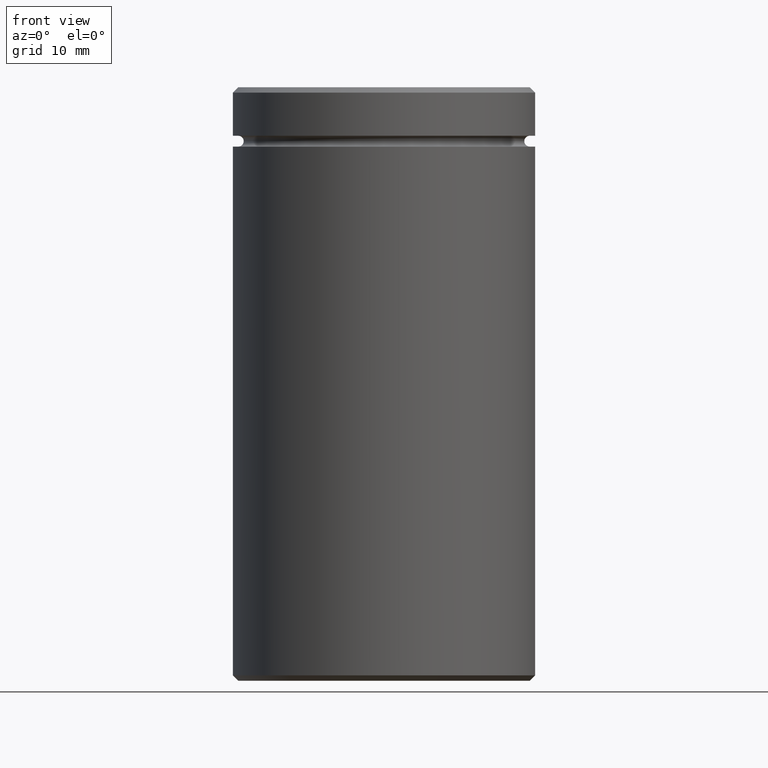
[diagram: clean part render]
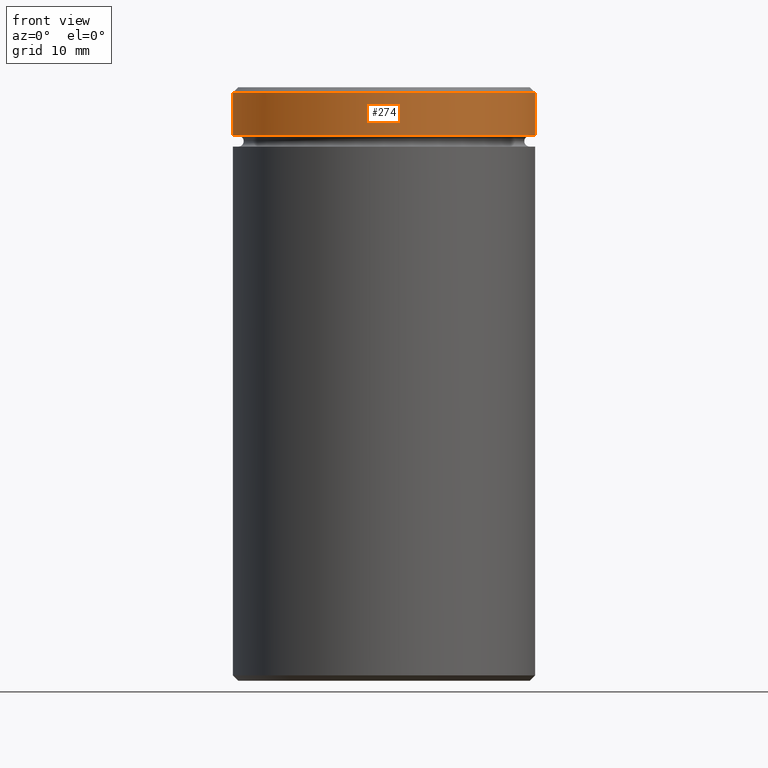
[diagram: same view with one face highlighted and labeled with its STEP entity id]
A machine part, front view. The second image highlights one B-rep face of the part: STEP entity #274.
In plain terms, the highlighted cylindrical surface (partial cylindrical patch) has radius 14 mm, axis along (-0, -0, 1).
Its self-contained STEP definition (entity closure, byte-faithful):
#11 = CARTESIAN_POINT ( 'NONE',  ( 0.000000000000000000, 0.000000000000000000, -4.500000000000000888 ) ) ;
#18 = CARTESIAN_POINT ( 'NONE',  ( -14.00000000000000000, 1.714505518806294638E-15, -4.500000000000000888 ) ) ;
#32 = CARTESIAN_POINT ( 'NONE',  ( 14.00000000000000000, 0.000000000000000000, 0.000000000000000000 ) ) ;
#35 = AXIS2_PLACEMENT_3D ( 'NONE', #166, #337, #517 ) ;
#48 = ORIENTED_EDGE ( 'NONE', *, *, #497, .T. ) ;
#53 = ORIENTED_EDGE ( 'NONE', *, *, #297, .T. ) ;
#70 = CIRCLE ( 'NONE', #257, 14.00000000000000000 ) ;
#116 = CIRCLE ( 'NONE', #35, 14.00000000000000000 ) ;
#123 = DIRECTION ( 'NONE',  ( -0.000000000000000000, -0.000000000000000000, 1.000000000000000000 ) ) ;
#148 = DIRECTION ( 'NONE',  ( -0.000000000000000000, -0.000000000000000000, 1.000000000000000000 ) ) ;
#159 = FACE_OUTER_BOUND ( 'NONE', #472, .T. ) ;
#166 = CARTESIAN_POINT ( 'NONE',  ( 0.000000000000000000, 0.000000000000000000, -0.4999999999999813483 ) ) ;
#200 = DIRECTION ( 'NONE',  ( -0.000000000000000000, -0.000000000000000000, 1.000000000000000000 ) ) ;
#213 = EDGE_CURVE ( 'NONE', #495, #426, #338, .T. ) ;
#218 = VERTEX_POINT ( 'NONE', #18 ) ;
#219 = ORIENTED_EDGE ( 'NONE', *, *, #413, .F. ) ;
#226 = DIRECTION ( 'NONE',  ( 1.000000000000000000, 0.000000000000000000, 0.000000000000000000 ) ) ;
#227 = VECTOR ( 'NONE', #123, 1000.000000000000000 ) ;
#235 = CARTESIAN_POINT ( 'NONE',  ( -14.00000000000000000, 1.714505518806294638E-15, 0.000000000000000000 ) ) ;
#236 = VECTOR ( 'NONE', #287, 1000.000000000000000 ) ;
#250 = LINE ( 'NONE', #235, #236 ) ;
#257 = AXIS2_PLACEMENT_3D ( 'NONE', #11, #148, #226 ) ;
#274 = ADVANCED_FACE ( 'NONE', ( #159 ), #418, .T. ) ;
#287 = DIRECTION ( 'NONE',  ( -0.000000000000000000, -0.000000000000000000, 1.000000000000000000 ) ) ;
#297 = EDGE_CURVE ( 'NONE', #426, #354, #116, .T. ) ;
#325 = CARTESIAN_POINT ( 'NONE',  ( -14.00000000000000000, 1.714505518806294638E-15, -0.4999999999999813483 ) ) ;
#337 = DIRECTION ( 'NONE',  ( 0.000000000000000000, 0.000000000000000000, -1.000000000000000000 ) ) ;
#338 = LINE ( 'NONE', #32, #227 ) ;
#342 = ORIENTED_EDGE ( 'NONE', *, *, #213, .T. ) ;
#354 = VERTEX_POINT ( 'NONE', #325 ) ;
#386 = DIRECTION ( 'NONE',  ( 1.000000000000000000, 0.000000000000000000, 0.000000000000000000 ) ) ;
#394 = AXIS2_PLACEMENT_3D ( 'NONE', #424, #200, #386 ) ;
#413 = EDGE_CURVE ( 'NONE', #218, #354, #250, .T. ) ;
#418 = CYLINDRICAL_SURFACE ( 'NONE', #394, 14.00000000000000000 ) ;
#420 = CARTESIAN_POINT ( 'NONE',  ( 14.00000000000000000, 0.000000000000000000, -0.4999999999999813483 ) ) ;
#424 = CARTESIAN_POINT ( 'NONE',  ( 0.000000000000000000, 0.000000000000000000, 0.000000000000000000 ) ) ;
#426 = VERTEX_POINT ( 'NONE', #420 ) ;
#468 = CARTESIAN_POINT ( 'NONE',  ( 14.00000000000000000, 0.000000000000000000, -4.500000000000000888 ) ) ;
#472 = EDGE_LOOP ( 'NONE', ( #219, #48, #342, #53 ) ) ;
#495 = VERTEX_POINT ( 'NONE', #468 ) ;
#497 = EDGE_CURVE ( 'NONE', #218, #495, #70, .T. ) ;
#517 = DIRECTION ( 'NONE',  ( 1.000000000000000000, 0.000000000000000000, 0.000000000000000000 ) ) ;